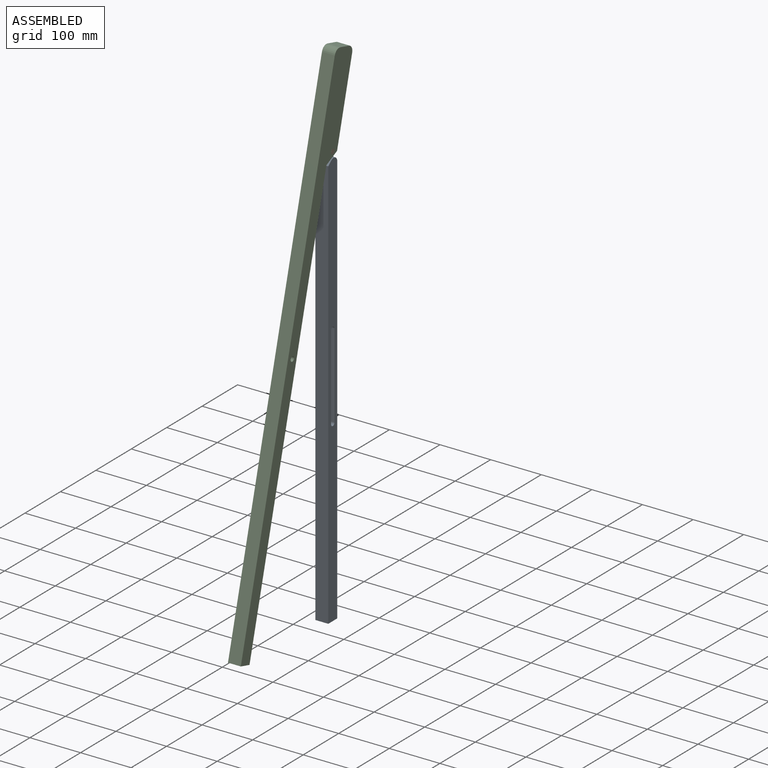
[diagram: assembled view]
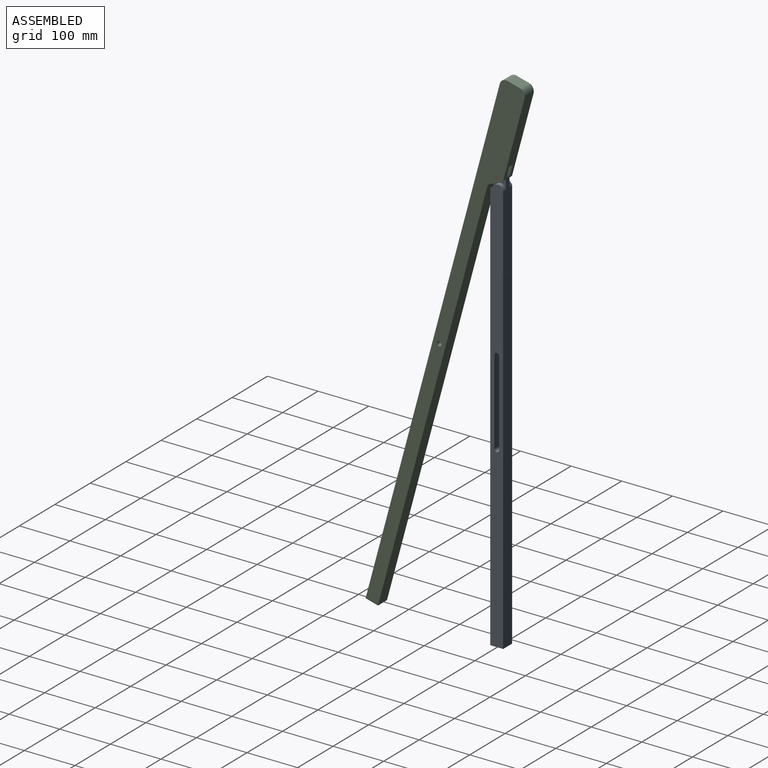
[diagram: assembled view, second angle]
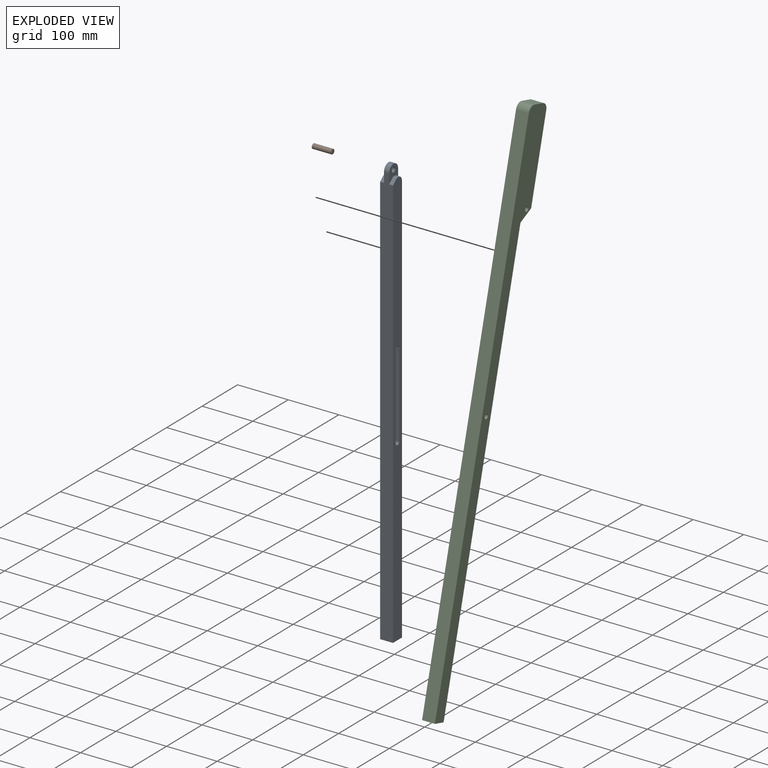
[diagram: exploded view]
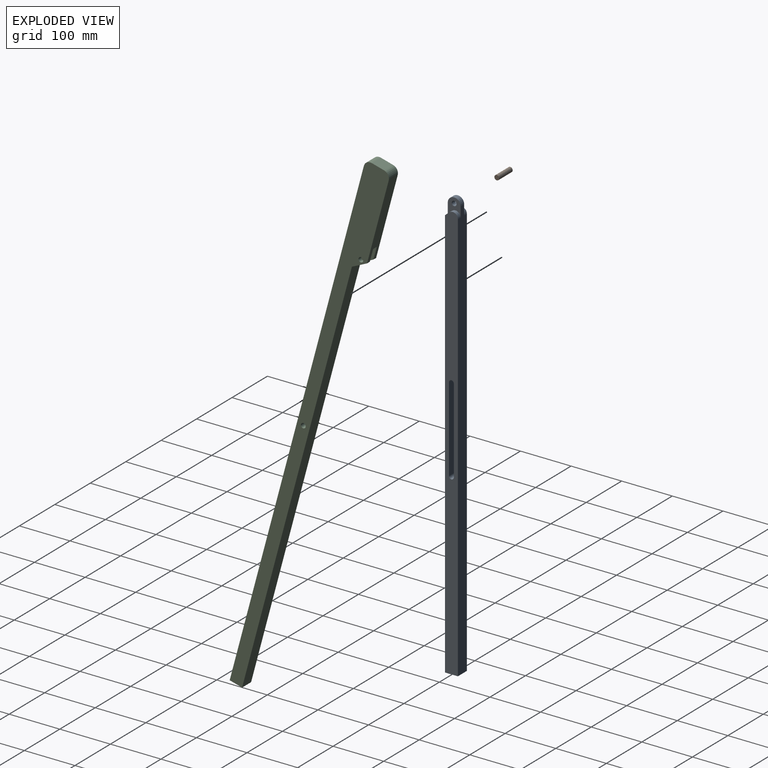
[diagram: exploded view, second angle]
ASSEMBLY  parts=3 mates=2
PART A: 17 faces, bbox 25.4x25.4x849.1 mm
  f0: plane 8.71x7.62mm, normal (0,-0.64,0.77), area 86.6mm2, adj f1,f9,f12,f14
  f1: plane 836.36x25.4mm, normal (0,-1,0), area 20946.8mm2, adj f0,f2,f8,f9,f10,f11,f12,f15
  f2: plane 25.4x25.4mm, normal (0,0,-1), area 645.2mm2, adj f1,f3,f9,f10
  f3: plane 836.36x25.4mm, normal (0,1,0), area 20939.6mm2, adj f2,f9,f10,f11,f12,f13,f14,f15
  f4: cylinder r=4.76mm len=25.4mm, axis (-1,0,0), area 380mm2, adj f5,f7,f9,f10
  f5: plane 167.64x25.4mm, normal (0,1,0), area 4258.1mm2, adj f4,f6,f9,f10
  f6: cylinder r=4.76mm len=25.4mm, axis (-1,0,0), area 380mm2, adj f5,f7,f9,f10
  f7: plane 167.64x25.4mm, normal (0,-1,0), area 4258.1mm2, adj f4,f6,f9,f10
  f8: plane 8.71x7.62mm, normal (0,-0.64,0.77), area 86.6mm2, adj f1,f10,f11,f13
  f9: plane 826.57x25.4mm, normal (1,0,0), area 19247.3mm2, adj f0,f1,f2,f3,f4,f5,f6,f7
  f10: plane 826.57x25.4mm, normal (-1,0,0), area 19247.3mm2, adj f1,f2,f3,f4,f5,f6,f7,f8
  f11: plane 32.65x25.4mm, normal (-1,0,0), area 510.4mm2, adj f1,f3,f8,f13,f15,f16
  f12: plane 32.65x25.4mm, normal (1,0,0), area 510.4mm2, adj f0,f1,f3,f14,f15,f16
  f13: cylinder r=10.16mm len=16.69mm, axis (-1,0,0), area 175.7mm2, adj f3,f8,f10,f11
  f14: cylinder r=10.16mm len=16.69mm, axis (-1,0,0), area 175.7mm2, adj f0,f3,f9,f12
  f15: cylinder r=12.7mm len=25.4mm, axis (-1,0,0), area 405.4mm2, adj f1,f3,f11,f12
  f16: cylinder r=4.76mm len=10.16mm, axis (1,0,0), area 304mm2, adj f11,f12
PART B: 3 faces, bbox 9.5x38.1x9.5 mm
  f0: cylinder r=4.76mm len=38.1mm, axis (0,1,0), area 1140.1mm2, adj f1,f2
  f1: plane 9.53x9.53mm, normal (0,-1,0), area 71.3mm2, adj f0
  f2: plane 9.53x9.53mm, normal (0,1,0), area 71.3mm2, adj f0
PART C: 17 faces, bbox 25.4x50.8x1037.3 mm
  f0: plane 25.4x21.31mm, normal (0,0.64,-0.77), area 252.7mm2, adj f5,f7,f8,f13
  f1: plane 25.4x21.31mm, normal (0,0.64,-0.77), area 252.7mm2, adj f5,f7,f9,f14
  f2: plane 25.4x25.4mm, normal (0,0,1), area 645.2mm2, adj f8,f9,f10,f11
  f3: plane 1024.61x25.4mm, normal (0,-1,0), area 26025.2mm2, adj f4,f8,f9,f10
  f4: plane 25.4x25.4mm, normal (0,0,-1), area 645.2mm2, adj f3,f5,f8,f9
  f5: plane 863.6x25.4mm, normal (0,1,0), area 21548.3mm2, adj f0,f1,f4,f8,f9,f12,f13,f14
  f6: cylinder r=4.76mm len=25.4mm, axis (-1,0,0), area 760.1mm2, adj f8,f9
  f7: plane 165.1x25.4mm, normal (0,1,0), area 3935.5mm2, adj f0,f1,f8,f9,f11,f12,f13,f14
  f8: plane 1037.31x50.8mm, normal (1,0,0), area 30922.8mm2, adj f0,f2,f3,f4,f5,f6,f7,f10
  f9: plane 1037.31x50.8mm, normal (-1,0,0), area 30922.8mm2, adj f1,f2,f3,f4,f5,f6,f7,f10
  f10: cylinder r=12.7mm len=25.4mm, axis (1,0,0), area 506.7mm2, adj f2,f3,f8,f9
  f11: cylinder r=12.7mm len=25.4mm, axis (-1,0,0), area 506.7mm2, adj f2,f7,f8,f9
  f12: plane 25.4x21.31mm, normal (0,0.64,-0.77), area 336.9mm2, adj f5,f7,f13,f14
  f13: plane 46.71x25.4mm, normal (-1,0,0), area 573.9mm2, adj f0,f5,f7,f12,f16
  f14: plane 46.71x25.4mm, normal (1,0,0), area 573.9mm2, adj f1,f5,f7,f12,f15
  f15: cylinder r=4.76mm len=9.53mm, axis (1,0,0), area 228mm2, adj f9,f14
  f16: cylinder r=4.76mm len=9.53mm, axis (1,0,0), area 228mm2, adj f8,f13
PLACE A t=(-160.31,-2.11,-291.66)mm
PLACE B rot(axis=(0.58,0.58,-0.58),120deg) t=(-134.99,-49.44,343.97)mm
PLACE C rot(axis=(-1,0,0),15deg) t=(-160.47,-158.62,23.82)mm
MATE cylindrical B.f0 <-> A.f16  axis (1,0,0) through (-154.04,-81.08,392.99)mm
MATE cylindrical B.f0 <-> C.f15  axis (1,0,0) through (-134.99,-81.08,392.99)mm
